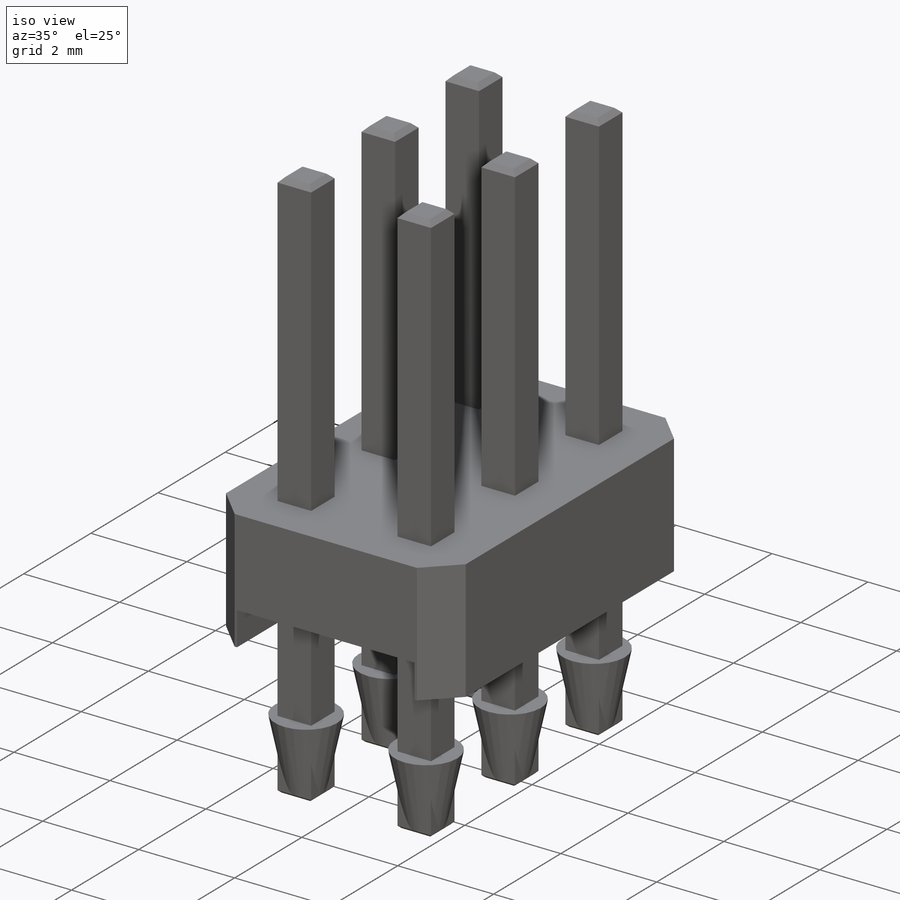
[diagram: iso view]
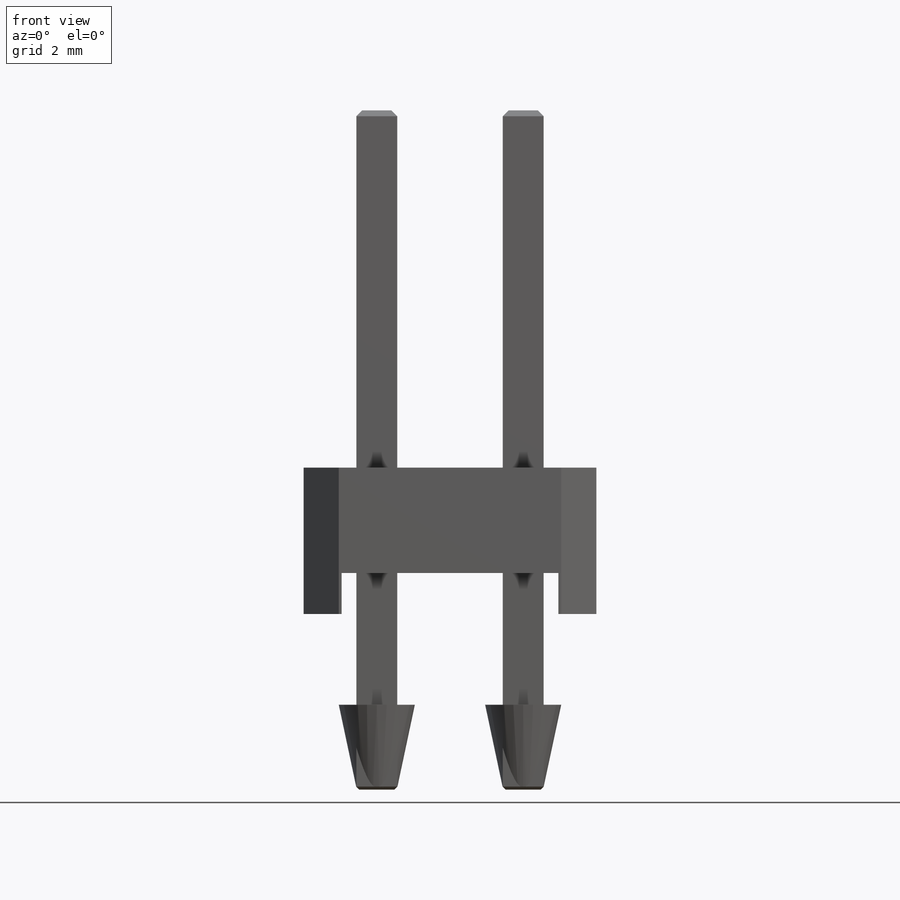
[diagram: front view]
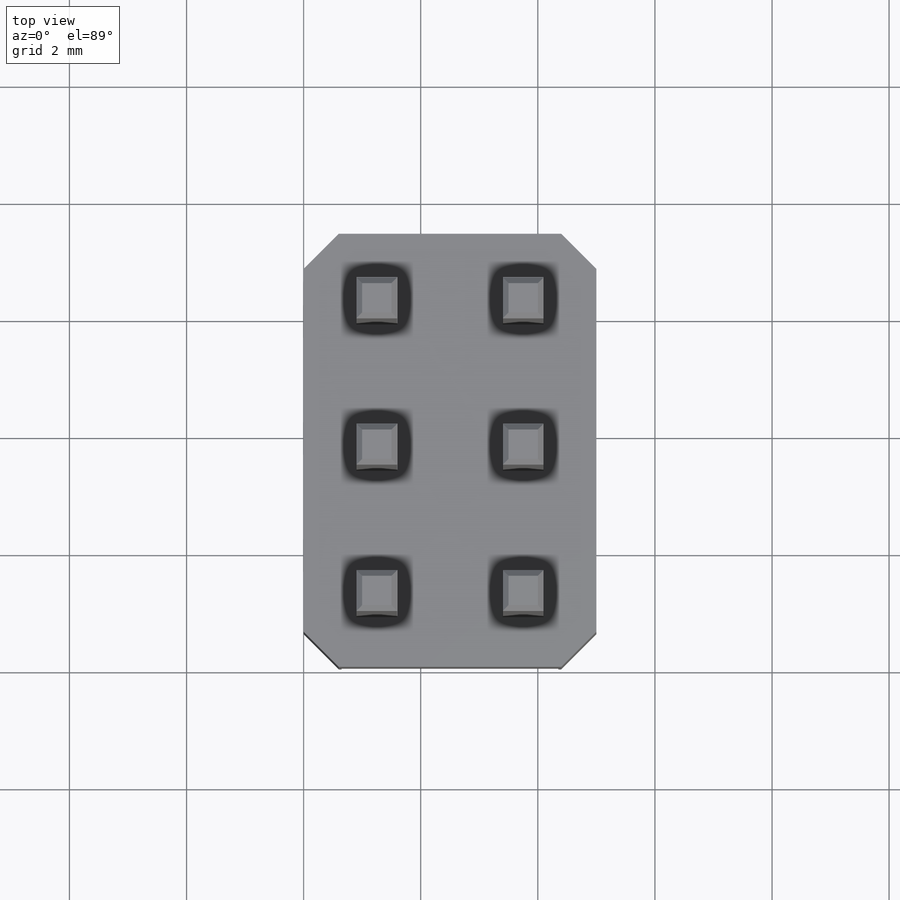
[diagram: top view]
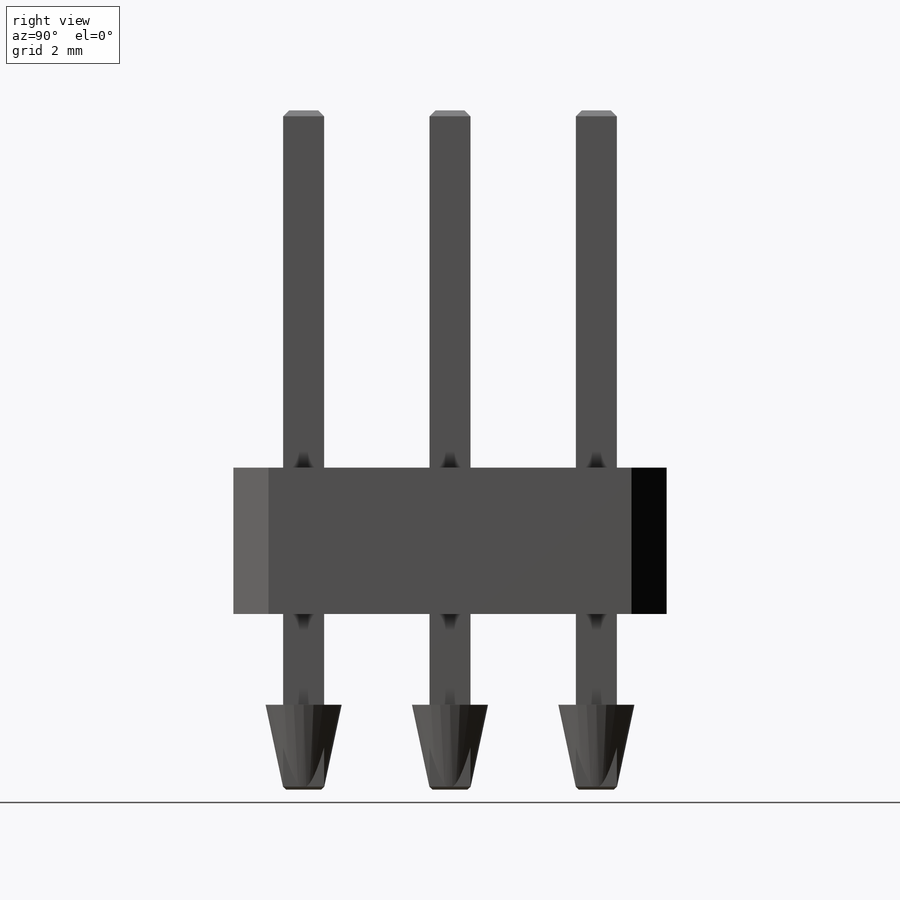
[diagram: right view]
SOLIDWORKS PART (.sldprt)
format: sldprt  version: not decoded by parser v0  size: 482,304 bytes
history: native  units: mm
features: plane x4, sketch x4, extrude x3, chamfer x3, material x1, cut_extrude x1 (+10 scaffold rows collapsed)
feature tree (26):
  scaffold x10  (default folders/planes/origin — collapsed)
  material  "Material <not specified>"
  plane  "Plan de face"
  plane  "Plan de dessus"
  plane  "Plan de droite"
  sketch  "Esquisse1"  dims[D1=7.4mm D2=5.0mm]
  extrude  "Boss.-Extru.1"  Depth=2.5mm
  sketch  "Esquisse3"  dims[c1.D1=0.7mm c1.D2=3.7mm c1.D3=2.5mm c2.D3=90.0deg c3.D3=2.5mm]
  cut_extrude  "Enlèv. mat.-Extru.1"  [1 undecoded]
  sketch  "Esquisse2"  dims[D1=0.85mm D2=1.8mm D3=1.8mm D4=0.9mm D5=0.7mm D6=0.7mm]
  extrude  "Boss.-Extru.2"  Depth=6.1mm
  plane  "Plan1"  Offset=1.55mm
  sketch  "Esquisse4"  dims[D1=1.3mm]
  extrude  "Boss.-Extru.3"  Depth=1.4mm
  chamfer  "Chanfrein1"  Distance=0.1mm Angle=45deg
  chamfer  "Chanfrein2"  Distance=0.6mm Angle=45deg
  chamfer  "Chanfrein3"  Distance=0.05mm Angle=45deg
decode coverage: 10 of 11 modeling features carry decoded parameters
note: 1 parameter value undecoded
note: suppression state not decoded; provenance and decode notes live in map.json
